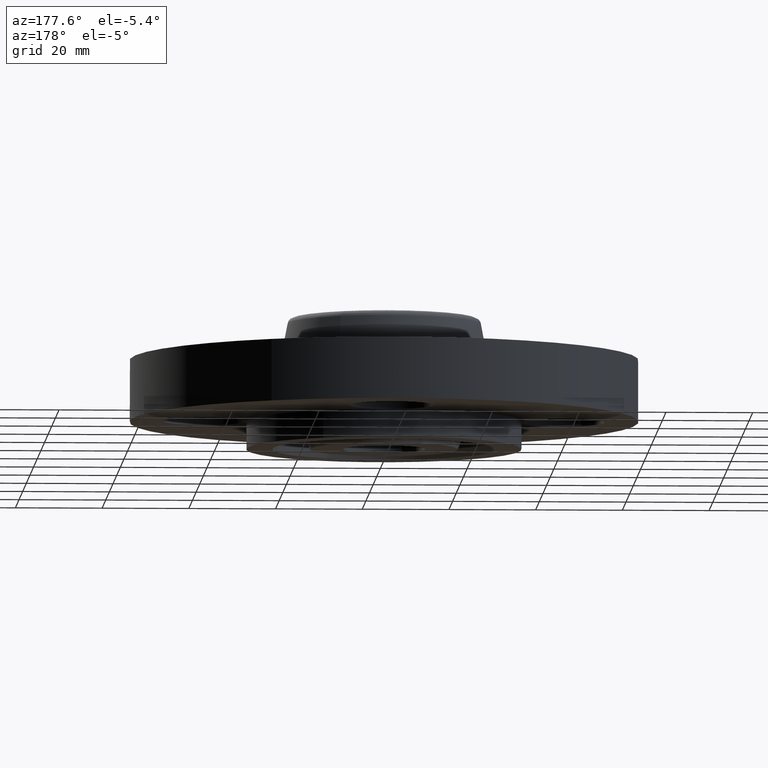
[diagram: clean part render]
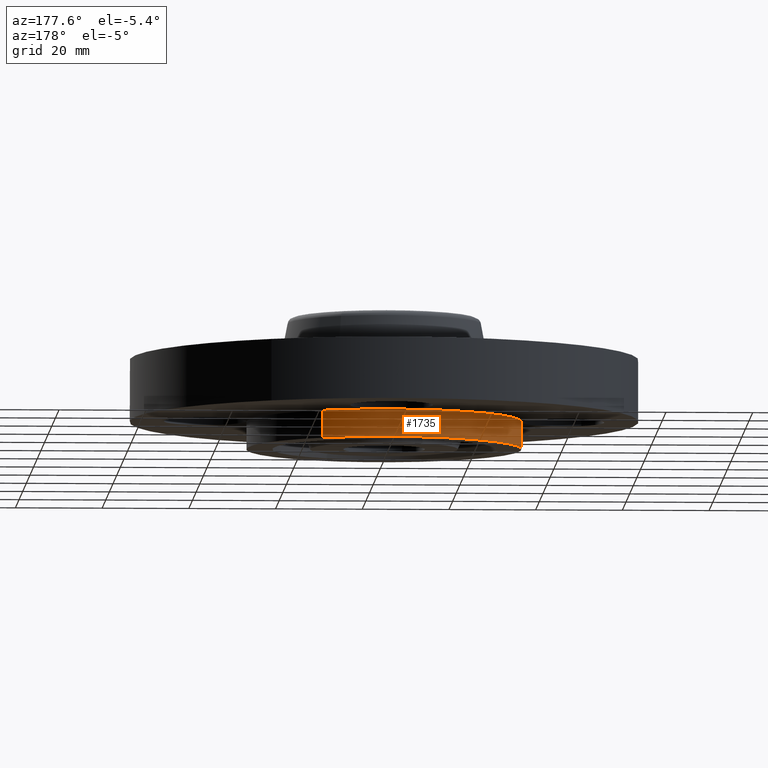
[diagram: same view with one face highlighted and labeled with its STEP entity id]
A machine part, auxiliary view. The second image highlights one B-rep face of the part: STEP entity #1735.
In plain terms, the highlighted cylindrical surface (partial cylindrical patch) has radius 31.75 mm, axis along (0, 0, -1).
Its self-contained STEP definition (entity closure, byte-faithful):
#1434=AXIS2_PLACEMENT_3D('Circle Axis2P3D',#1432,#1433,$) ;
#1439=AXIS2_PLACEMENT_3D('Circle Axis2P3D',#1437,#1438,$) ;
#1444=AXIS2_PLACEMENT_3D('Circle Axis2P3D',#1442,#1443,$) ;
#1663=AXIS2_PLACEMENT_3D('Circle Axis2P3D',#1661,#1662,$) ;
#1725=AXIS2_PLACEMENT_3D('Cylinder Axis2P3D',#1722,#1723,#1724) ;
#1010=CARTESIAN_POINT('Vertex',(3.56670074053E-015,1.25000000001,-9.55994688486E-012)) ;
#1213=CARTESIAN_POINT('Vertex',(-1.25,1.00003295234E-011,0.)) ;
#1429=CARTESIAN_POINT('Vertex',(0.599281923259,1.09697820237,-9.55994688486E-012)) ;
#1432=CARTESIAN_POINT('Axis2P3D Location',(2.37968699864E-011,6.6424975756E-011,0.)) ;
#1437=CARTESIAN_POINT('Axis2P3D Location',(7.00911245055E-011,-6.00910747233E-011,0.)) ;
#1442=CARTESIAN_POINT('Axis2P3D Location',(1.28371853829E-011,1.24856905217E-011,0.)) ;
#1446=CARTESIAN_POINT('Vertex',(-0.59928192326,-1.09697820237,-9.55994688486E-012)) ;
#1661=CARTESIAN_POINT('Axis2P3D Location',(0.,1.13252539455E-011,-0.250000000001)) ;
#1665=CARTESIAN_POINT('Vertex',(-0.599281923244,-1.09697820236,-0.250000000001)) ;
#1667=CARTESIAN_POINT('Vertex',(0.599281923244,1.09697820239,-0.250000000001)) ;
#1696=CARTESIAN_POINT('Line Origine',(0.59928192326,1.09697820237,-0.125000000002)) ;
#1701=CARTESIAN_POINT('Line Origine',(-0.59928192326,-1.09697820237,-0.125000000002)) ;
#1722=CARTESIAN_POINT('Axis2P3D Location',(0.,0.,0.345000000001)) ;
#1433=DIRECTION('Axis2P3D Direction',(0.,0.,-0.0393700787402)) ;
#1438=DIRECTION('Axis2P3D Direction',(0.,0.,-0.0393700787402)) ;
#1443=DIRECTION('Axis2P3D Direction',(0.,0.,-0.0393700787402)) ;
#1662=DIRECTION('Axis2P3D Direction',(0.,0.,-0.0393700787402)) ;
#1697=DIRECTION('Vector Direction',(0.,0.,-0.0393700787402)) ;
#1702=DIRECTION('Vector Direction',(0.,0.,-0.0393700787402)) ;
#1723=DIRECTION('Axis2P3D Direction',(0.,0.,-0.0393700787402)) ;
#1724=DIRECTION('Axis2P3D XDirection',(-0.0188750212049,-0.0345504945626,0.)) ;
#1698=VECTOR('Line Direction',#1697,0.0393700787402) ;
#1703=VECTOR('Line Direction',#1702,0.0393700787402) ;
#1728=ORIENTED_EDGE('',*,*,#1669,.F.) ;
#1729=ORIENTED_EDGE('',*,*,#1705,.T.) ;
#1730=ORIENTED_EDGE('',*,*,#1448,.T.) ;
#1731=ORIENTED_EDGE('',*,*,#1441,.T.) ;
#1732=ORIENTED_EDGE('',*,*,#1436,.T.) ;
#1733=ORIENTED_EDGE('',*,*,#1700,.F.) ;
#1735=ADVANCED_FACE('PartBody',(#1734),#1726,.T.) ;
#1435=CIRCLE('generated circle',#1434,1.24999999994) ;
#1440=CIRCLE('generated circle',#1439,1.25000000007) ;
#1445=CIRCLE('generated circle',#1444,1.25000000001) ;
#1664=CIRCLE('generated circle',#1663,1.25) ;
#1726=CYLINDRICAL_SURFACE('generated cylinder',#1725,1.25000000001) ;
#1436=EDGE_CURVE('',#1011,#1430,#1435,.T.) ;
#1441=EDGE_CURVE('',#1214,#1011,#1440,.T.) ;
#1448=EDGE_CURVE('',#1447,#1214,#1445,.T.) ;
#1669=EDGE_CURVE('',#1666,#1668,#1664,.T.) ;
#1700=EDGE_CURVE('',#1668,#1430,#1699,.F.) ;
#1705=EDGE_CURVE('',#1666,#1447,#1704,.F.) ;
#1727=EDGE_LOOP('',(#1728,#1729,#1730,#1731,#1732,#1733)) ;
#1734=FACE_OUTER_BOUND('',#1727,.T.) ;
#1699=LINE('Line',#1696,#1698) ;
#1704=LINE('Line',#1701,#1703) ;
#1011=VERTEX_POINT('',#1010) ;
#1214=VERTEX_POINT('',#1213) ;
#1430=VERTEX_POINT('',#1429) ;
#1447=VERTEX_POINT('',#1446) ;
#1666=VERTEX_POINT('',#1665) ;
#1668=VERTEX_POINT('',#1667) ;